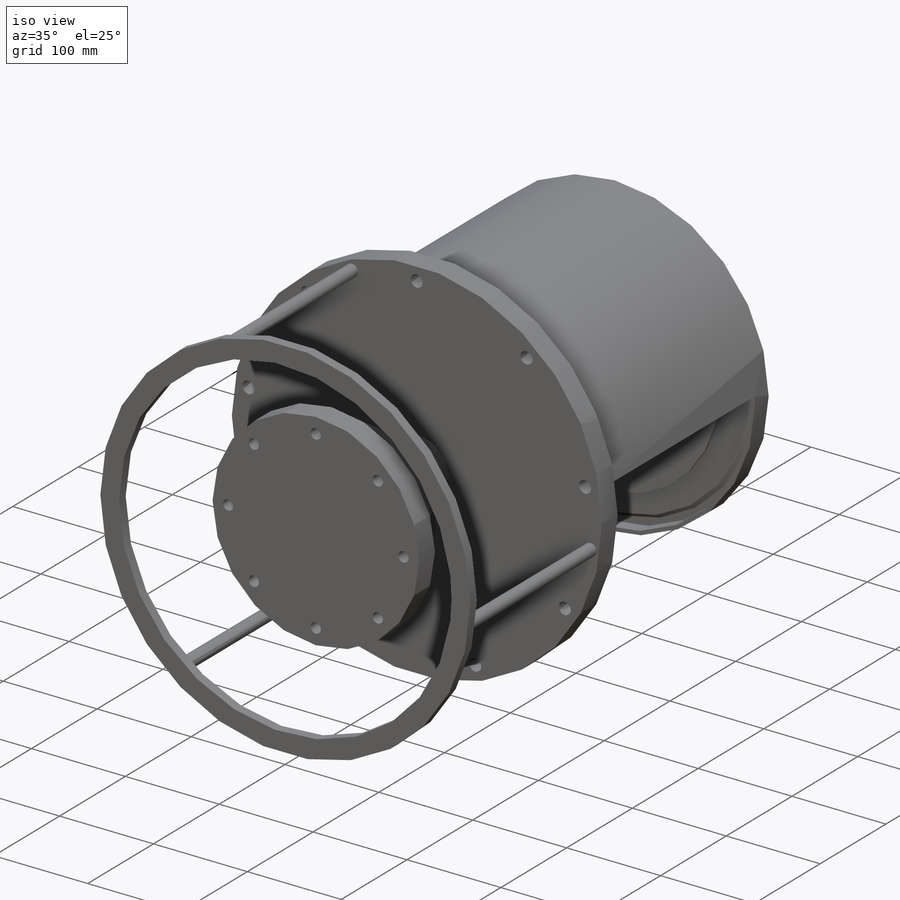
[diagram: iso view]
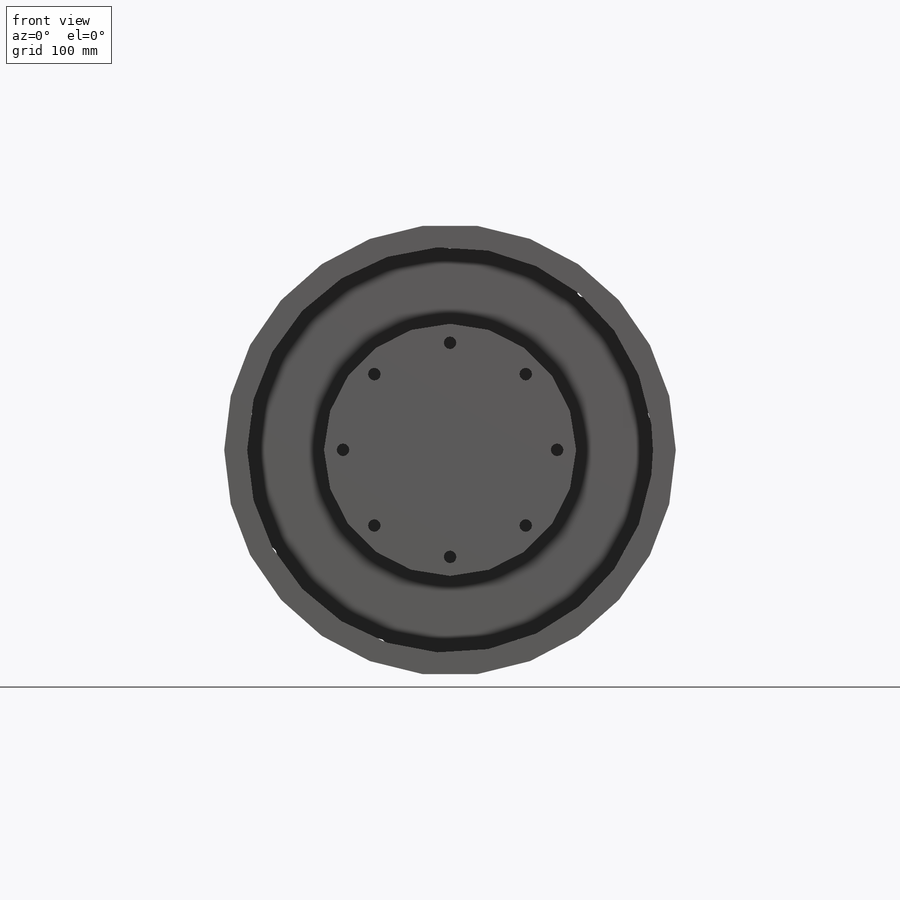
[diagram: front view]
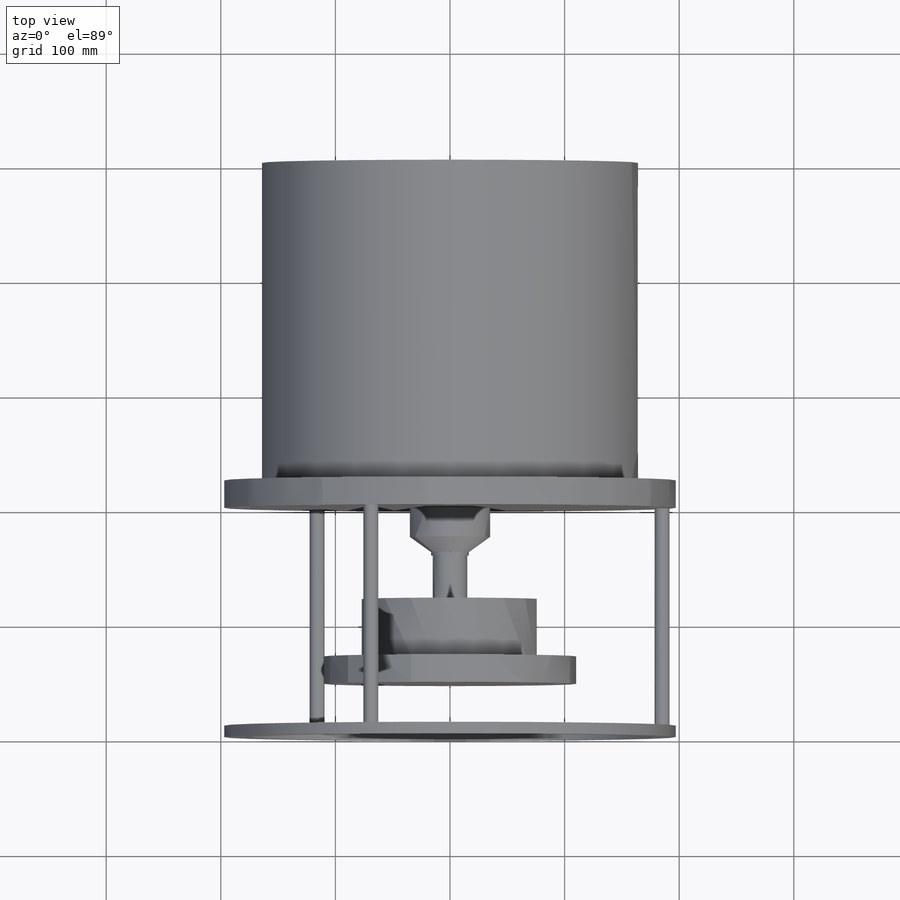
[diagram: top view]
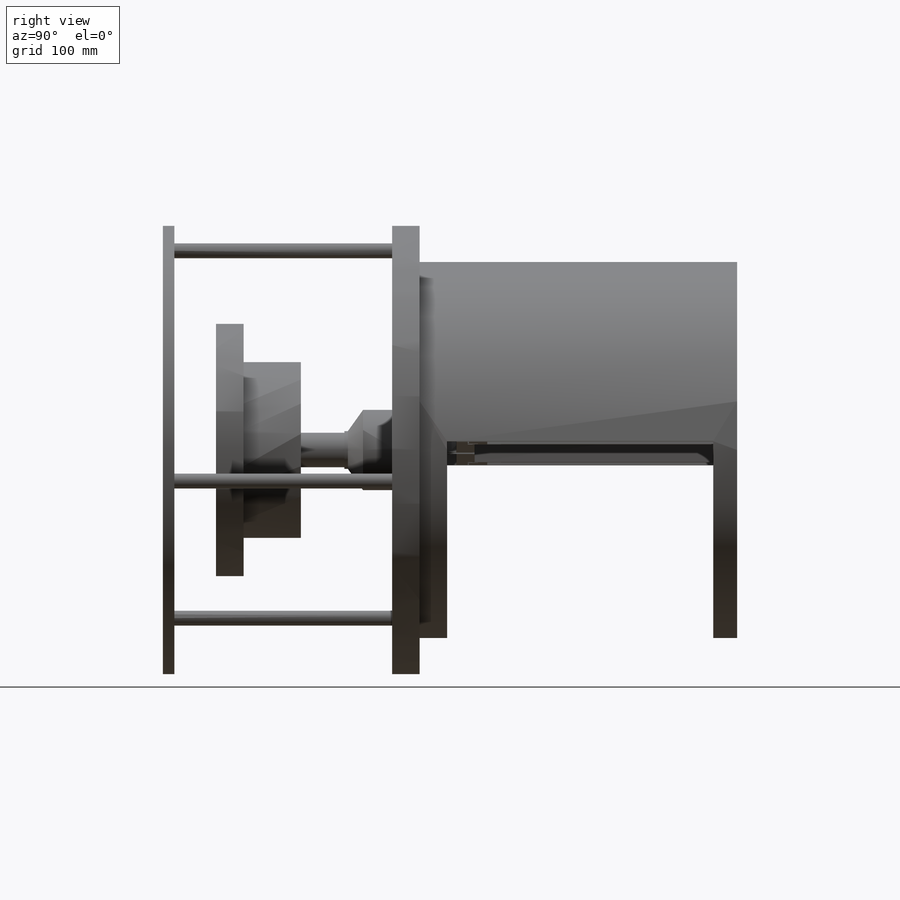
[diagram: right view]
SOLIDWORKS PART (.sldprt)
format: sldprt  version: not decoded by parser v0  size: 922,624 bytes
history: native  units: mm
features: sketch x15, revolve x10, cut_extrude x3, extrude x2, material x1 (+24 scaffold rows collapsed; 11 parser-record rows omitted)
feature tree (66):
  scaffold x24  (default folders/planes/origin — collapsed)
  material  "Материал <не указан>"
  parser-record x11  (decoder bookkeeping rows leaked as tree rows — omitted from the tree; the rows remain in map.json)
  sketch  "Эскиз14"  dims[D1=600.0mm D2=110.0mm D3=441.0mm D4=12.0mm]
  revolve  "Повернуть11"  Angle=360deg
  sketch  "Эскиз15"  dims[D1=12.0mm D2=110.0mm D3=60.0mm D4=35.0mm D5=15.0mm D6=2.0mm D7=33.0mm D8=62.0mm]
  revolve  "Повернуть12"  Angle=360deg
  sketch  "Эскиз16"  dims[D1=2.0mm D2=13.0mm D3=2.0mm D4=50.0mm D5=1.5mm D6=1.5mm D7=28.0mm D8=27.0mm D9=6.7mm D10=2.0mm D11=2.0mm D12=4.3mm D13=1.6mm]
  revolve  "Повернуть17"  Angle=360deg
  sketch  "Эскиз17"  dims[c1.D7=~25.908951mm c1.D1=38.0mm c1.D2=1.5mm c1.D3=3.0mm c1.D4=4.38mm c1.D5=7.6mm c1.D6=20.5mm c2.D7=40.0mm c2.D8=25.0mm c2.D9=126.0mm c2.D10=4.0mm c2.D11=37.5mm c2.D12=12.0mm c2.D13=~0.134397deg c3.D8=162.0mm]
  revolve  "Повернуть19"  Angle=360deg
  sketch  "Эскиз18"  dims[D1=12.0mm D2=27.0mm D3=5.0mm D4=5.0mm D5=5.0mm D6=281.0mm D7=27.0mm D8=2.0mm D9=4.0mm D10=2.0mm D11=277.0mm D12=2.0mm D13=8.0mm]
  revolve  "Повернуть20"  Angle=360deg
  sketch  "Эскиз19"  dims[c1.D1=2.0mm c1.D2=5.0mm c1.D3=8.0mm c1.D4=2.0mm c1.D5=3.0mm c1.D6=92.5mm c1.D7=2.0mm c1.D8=3.0mm c1.D9=2.0mm c1.D10=2.0mm c1.D11=3.0mm c1.D12=26.0mm c1.D13=9.0mm c1.D14=90.0deg c2.D14=~9.292076mm c3.D14=90.0deg c4.D14=12.0mm c4.D15=124.5mm c4.D16=1.0mm]
  revolve  "Повернуть21"  Angle=360deg
  sketch  "Эскиз20"  dims[c1.D1=32.0mm c1.D2=3.5mm c1.D3=144.0mm c1.D4=16.0mm c1.D5=2.0mm c1.D6=2.0mm c1.D7=2.0mm c1.D8=103.0mm c1.D9=6.0mm c2.D9=2.0mm c2.D10=4.0mm c2.D8=2.0mm c3.D9=103.0mm c3.D10=6.0mm c3.D11=11.0mm c3.D12=3.0mm c3.D13=6.0mm c3.D14=20.0mm c3.D15=3.0mm]
  revolve  "Повернуть22"  Angle=360deg
  sketch  "Эскиз21"  dims[c1.D1=0.8mm c1.D2=6.0mm c1.D3=3.0mm c1.D4=48.0mm c1.D5=3.0mm c1.D6=2.5mm c1.D7=120.0deg c2.D7=~0.802554mm c2.D8=2.5mm c3.D7=~0.413134mm c4.D7=30.0deg c5.D7=1.0mm c5.D9=135.0deg c6.D9=~1.59375mm c6.D2=8.0mm c6.D3=1.7mm c6.D11=3.5mm c6.D12=1.0mm c6.D13=2.53mm c6.D14=0.8mm c6.D15=0.8mm c6.D10=30.0]
  revolve  "Повернуть26"  Angle=360deg
  sketch  "Эскиз22"  dims[D1=1.0mm D2=16.0mm D3=33.0mm D4=197.0mm D5=1.75mm D6=1.5mm D7=1.25mm D8=208.5mm D9=3.4mm D10=5.0mm D11=3.26mm D12=6.0mm D13=2.0mm]
  revolve  "Повернуть27"  Angle=360deg
  sketch  "Эскиз23"  dims[D1=12.0mm D2=2.0mm D3=187.0mm D4=125.0mm D5=2.0mm]
  revolve  "Медная рубашка"  Angle=360deg
  sketch  "отверсия под болты"  dims[c1.D1=182.0mm c2.D1=9.0]
  cut_extrude  "Вырез-Вытянуть2"  Depth=34mm
  sketch  "Эскиз24"  dims[c1.D1=~19.812503mm c2.D1=8.0]
  cut_extrude  "Вырез-Вытянуть3"  [1 undecoded]
  sketch  "Эскиз26"  dims[c1.D1=~11.913635mm c1.D2=394.0mm c1.D3=8.0mm c2.D1=187.0mm c2.D2=3.0]
  extrude  "Бобышка-Вытянуть1"  Depth=190mm
  sketch  "Эскиз27"  dims[D1=~172.685562mm]
  extrude  "Бобышка-Вытянуть2"  Depth=10mm
  cut_extrude  "Вырез-Вытянуть4"  [1 undecoded]
  sketch  "Эскиз28"  dims[D1=250.0mm]
decode coverage: 28 of 30 modeling features carry decoded parameters
note: ~ marks probable driven/reference dimensions
note: 2 parameter values undecoded
note: suppression state not decoded; provenance and decode notes live in map.json
